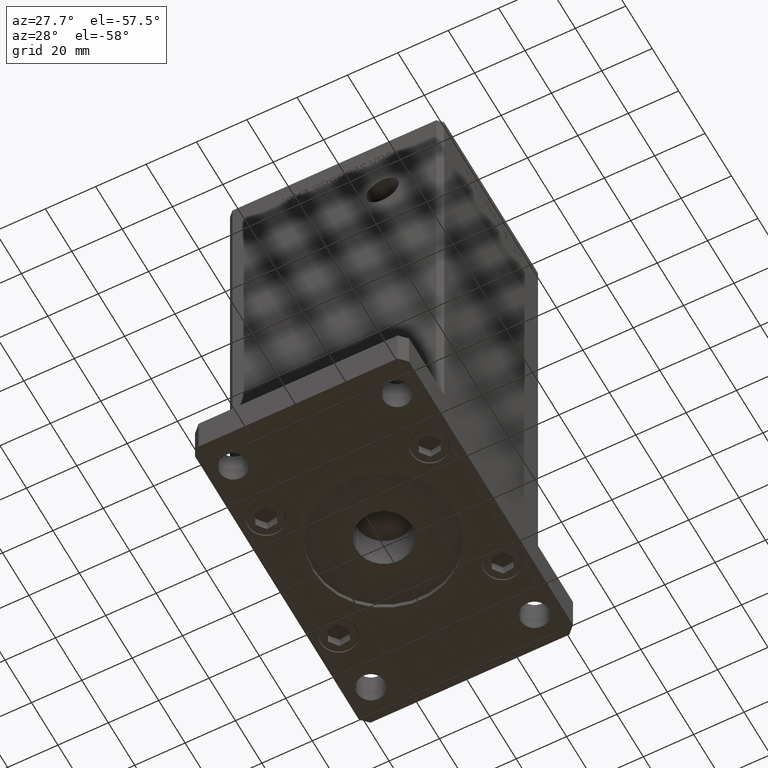
[diagram: clean part render]
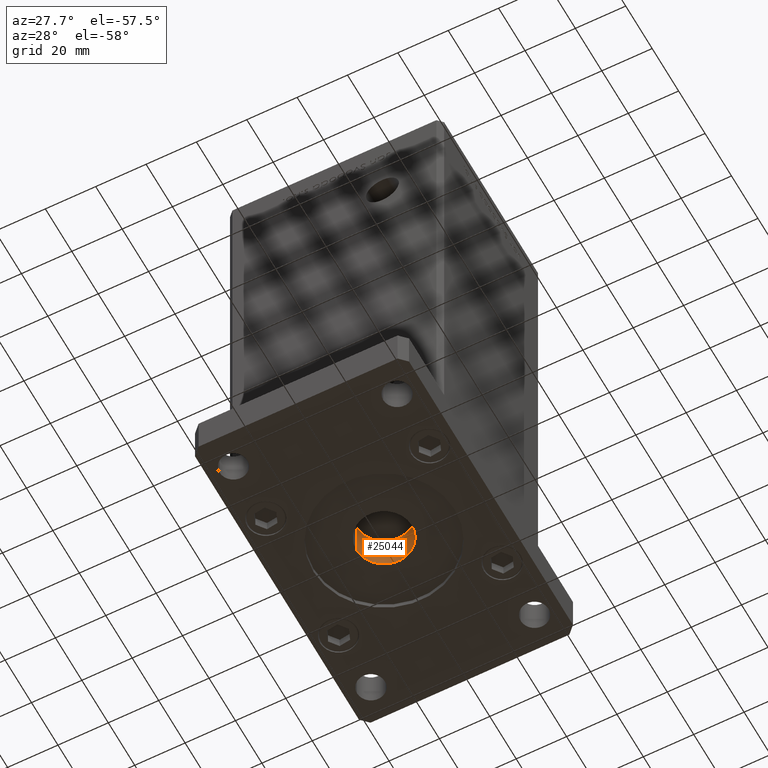
[diagram: same view with one face highlighted and labeled with its STEP entity id]
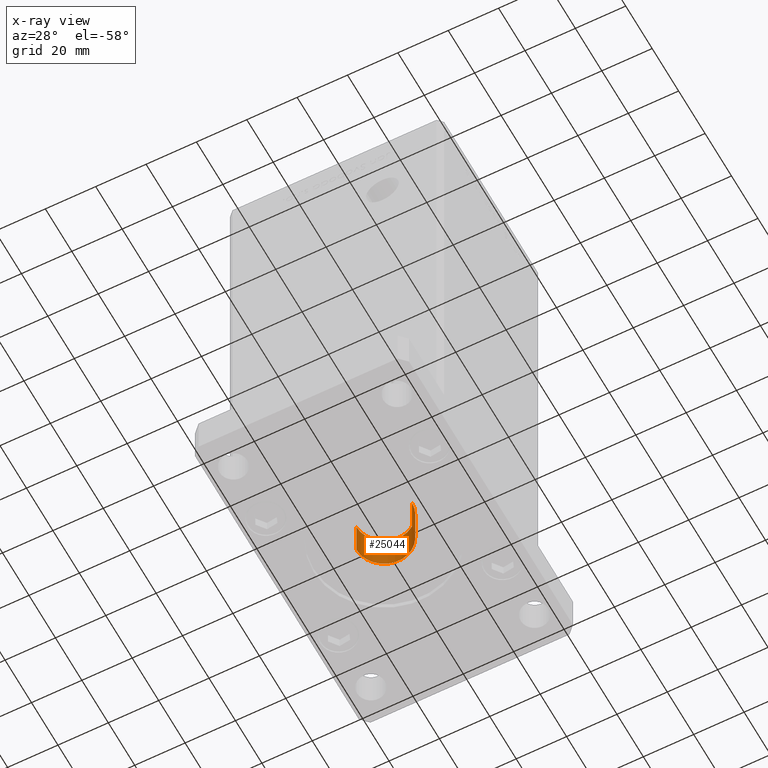
[diagram: x-ray of the same camera — body ghosted, the highlighted face saturated]
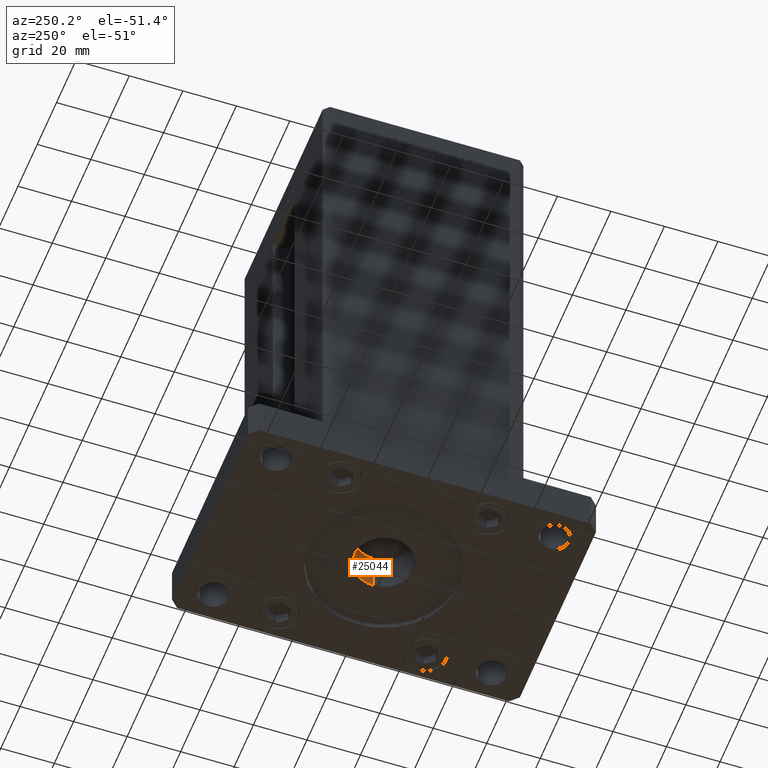
[diagram: same view with one face highlighted and labeled with its STEP entity id]
A machine part, auxiliary view. The second image highlights one B-rep face of the part: STEP entity #25044.
The next image is the same camera in x-ray: the body ghosted, the highlighted face saturated — about 0% of this face is hidden behind the body in this view.
A second angle (auxiliary view) of the same face is appended — the face is thin or edge-on in the first view.
In plain terms, the highlighted cylindrical surface (edge-blend (fillet) strip) has radius 11 mm, axis along (0, 0, 1).
Its self-contained STEP definition (entity closure, byte-faithful):
#185 = EDGE_CURVE ( 'NONE', #15126, #33485, #27687, .T. ) ;
#1231 = VECTOR ( 'NONE', #39198, 1000.000000000000000 ) ;
#1673 = EDGE_CURVE ( 'NONE', #43231, #15126, #16424, .T. ) ;
#1703 = DIRECTION ( 'NONE',  ( 1.000000000000000000, 0.000000000000000000, 0.000000000000000000 ) ) ;
#3617 = DIRECTION ( 'NONE',  ( 1.000000000000000000, 0.000000000000000000, 0.000000000000000000 ) ) ;
#3814 = DIRECTION ( 'NONE',  ( -0.000000000000000000, -0.000000000000000000, 1.000000000000000000 ) ) ;
#8701 = CIRCLE ( 'NONE', #39031, 11.00000000000000000 ) ;
#15126 = VERTEX_POINT ( 'NONE', #20999 ) ;
#15399 = ORIENTED_EDGE ( 'NONE', *, *, #33929, .T. ) ;
#16287 = DIRECTION ( 'NONE',  ( -1.000000000000000000, 0.000000000000000000, 0.000000000000000000 ) ) ;
#16424 = CIRCLE ( 'NONE', #33732, 11.00000000000000000 ) ;
#19546 = EDGE_CURVE ( 'NONE', #45730, #33485, #8701, .T. ) ;
#19942 = ORIENTED_EDGE ( 'NONE', *, *, #185, .F. ) ;
#20999 = CARTESIAN_POINT ( 'NONE',  ( -11.00000000000000000, 1.347111479062088405E-15, 2.000000000000000000 ) ) ;
#22627 = CARTESIAN_POINT ( 'NONE',  ( 11.00000000000000000, 0.000000000000000000, 0.000000000000000000 ) ) ;
#25044 = ADVANCED_FACE ( 'NONE', ( #30216 ), #42710, .F. ) ;
#25340 = AXIS2_PLACEMENT_3D ( 'NONE', #47051, #51138, #1703 ) ;
#27237 = LINE ( 'NONE', #22627, #1231 ) ;
#27409 = CARTESIAN_POINT ( 'NONE',  ( -11.00000000000000000, 1.347111479062088405E-15, 0.000000000000000000 ) ) ;
#27687 = LINE ( 'NONE', #27409, #39791 ) ;
#28019 = EDGE_LOOP ( 'NONE', ( #19942, #40566, #15399, #30739 ) ) ;
#30216 = FACE_OUTER_BOUND ( 'NONE', #28019, .T. ) ;
#30739 = ORIENTED_EDGE ( 'NONE', *, *, #19546, .T. ) ;
#32047 = CARTESIAN_POINT ( 'NONE',  ( 0.000000000000000000, 0.000000000000000000, 2.000000000000000000 ) ) ;
#32387 = DIRECTION ( 'NONE',  ( 0.000000000000000000, 0.000000000000000000, 1.000000000000000000 ) ) ;
#33485 = VERTEX_POINT ( 'NONE', #46339 ) ;
#33732 = AXIS2_PLACEMENT_3D ( 'NONE', #32047, #3814, #16287 ) ;
#33929 = EDGE_CURVE ( 'NONE', #43231, #45730, #27237, .T. ) ;
#39031 = AXIS2_PLACEMENT_3D ( 'NONE', #48943, #32387, #3617 ) ;
#39198 = DIRECTION ( 'NONE',  ( -0.000000000000000000, -0.000000000000000000, 1.000000000000000000 ) ) ;
#39791 = VECTOR ( 'NONE', #52130, 1000.000000000000000 ) ;
#39813 = CARTESIAN_POINT ( 'NONE',  ( 11.00000000000000000, 0.000000000000000000, 2.000000000000000000 ) ) ;
#40566 = ORIENTED_EDGE ( 'NONE', *, *, #1673, .F. ) ;
#42710 = CYLINDRICAL_SURFACE ( 'NONE', #25340, 11.00000000000000000 ) ;
#43231 = VERTEX_POINT ( 'NONE', #39813 ) ;
#43976 = CARTESIAN_POINT ( 'NONE',  ( 11.00000000000000000, 0.000000000000000000, 17.00000000000000000 ) ) ;
#45730 = VERTEX_POINT ( 'NONE', #43976 ) ;
#46339 = CARTESIAN_POINT ( 'NONE',  ( -11.00000000000000000, 1.347111479062088405E-15, 17.00000000000000000 ) ) ;
#47051 = CARTESIAN_POINT ( 'NONE',  ( 0.000000000000000000, 0.000000000000000000, 0.000000000000000000 ) ) ;
#48943 = CARTESIAN_POINT ( 'NONE',  ( 0.000000000000000000, 0.000000000000000000, 17.00000000000000000 ) ) ;
#51138 = DIRECTION ( 'NONE',  ( -0.000000000000000000, -0.000000000000000000, 1.000000000000000000 ) ) ;
#52130 = DIRECTION ( 'NONE',  ( -0.000000000000000000, -0.000000000000000000, 1.000000000000000000 ) ) ;